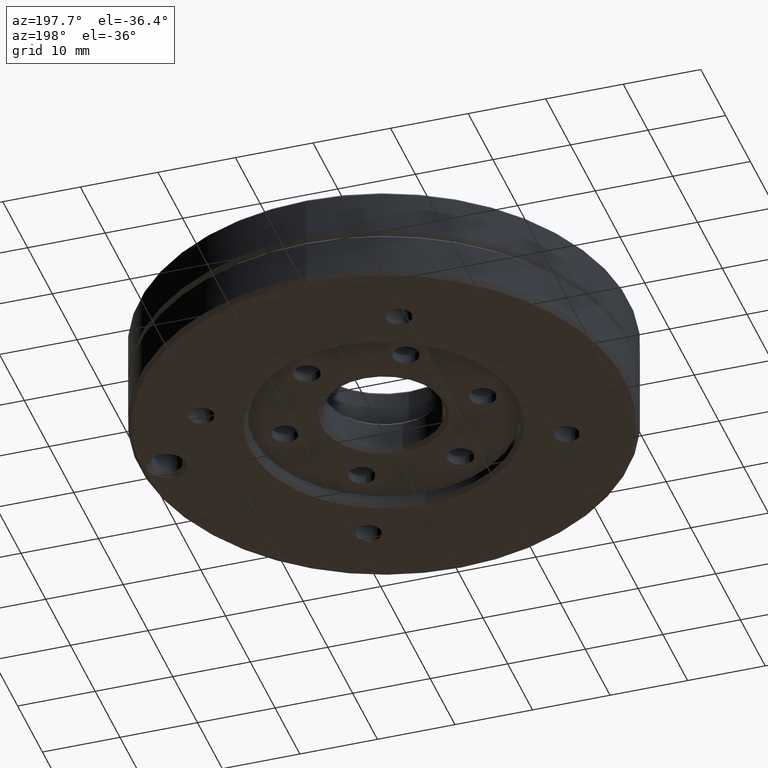
[diagram: clean part render]
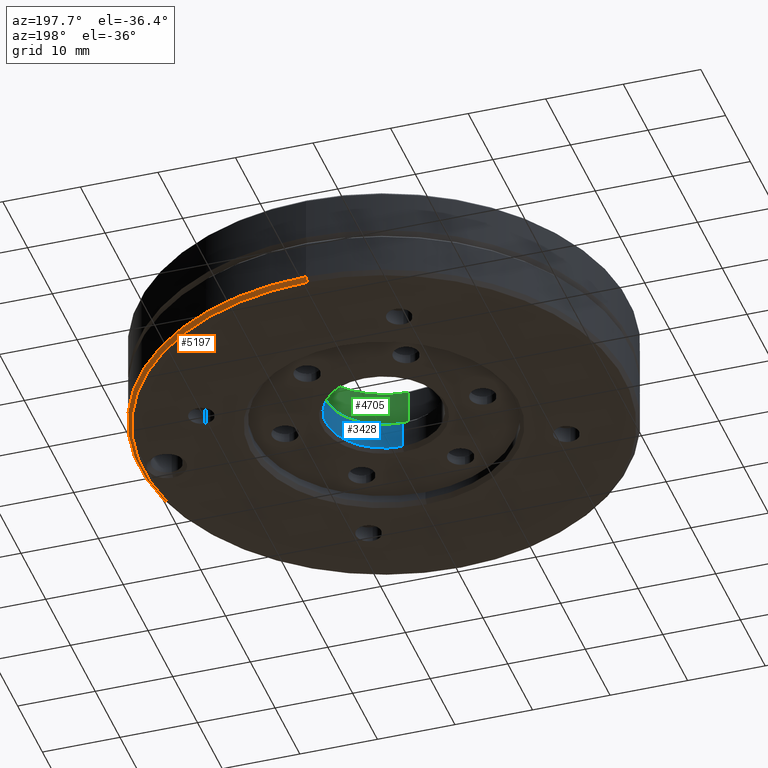
[diagram: same view with three faces highlighted in distinct colors, each labeled with its STEP entity id]
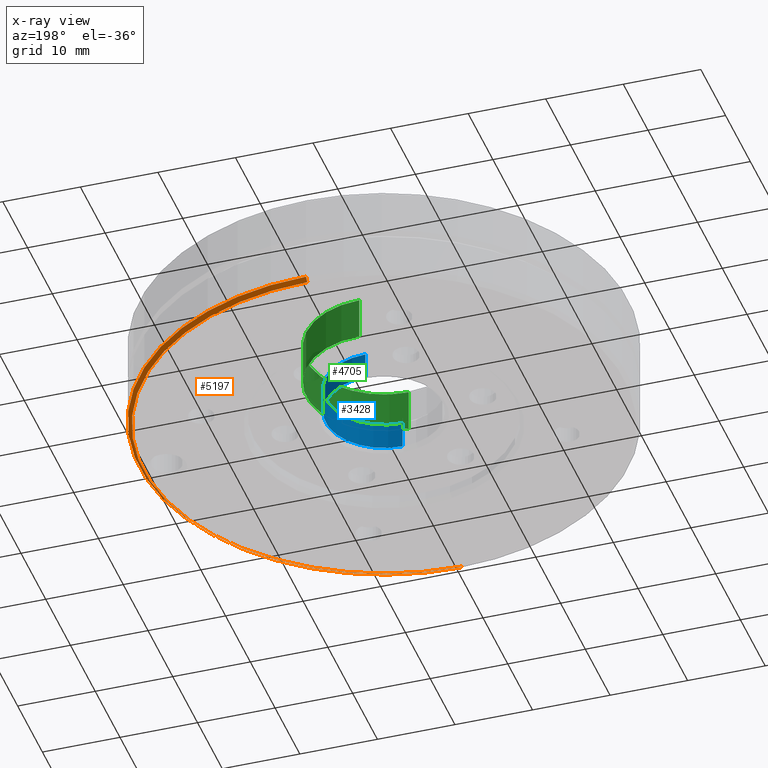
[diagram: x-ray of the same camera — body ghosted, the three highlighted faces saturated]
A machine part, auxiliary view with three faces highlighted in distinct colors.
The next image is the same camera in x-ray (body ghosted, the three faces saturated) — at least one of them is partly hidden behind the body in this view.
Their STEP definitions:

[orange] entity #5197 — the highlighted conical surface has half-angle 45 deg.
#318 = DIRECTION ( 'NONE',  ( -9.367506770274759888E-15, -1.000000000000000000, -1.652117596168385192E-15 ) ) ;
#700 = CARTESIAN_POINT ( 'NONE',  ( 2.952636095120133601E-13, 31.50000000000005684, -5.499999999999954703 ) ) ;
#966 = AXIS2_PLACEMENT_3D ( 'NONE', #3487, #4506, #1531 ) ;
#1105 = DIRECTION ( 'NONE',  ( -9.367506770274758310E-15, -1.000000000000000000, -1.650785243268248973E-15 ) ) ;
#1139 = CARTESIAN_POINT ( 'NONE',  ( -3.252606517456513302E-15, 7.806255641895631925E-15, -6.000000000000000000 ) ) ;
#1309 = CARTESIAN_POINT ( 'NONE',  ( 2.931000589752157613E-13, 31.00000000000001421, -5.999999999999949374 ) ) ;
#1531 = DIRECTION ( 'NONE',  ( -9.367506770274759888E-15, -1.000000000000000000, -1.652117596168385192E-15 ) ) ;
#1554 = CIRCLE ( 'NONE', #6189, 31.50000000000004974 ) ;
#1612 = ORIENTED_EDGE ( 'NONE', *, *, #5988, .T. ) ;
#1704 = EDGE_CURVE ( 'NONE', #4593, #3557, #6424, .T. ) ;
#1758 = DIRECTION ( 'NONE',  ( -7.214805701730610322E-15, -0.7071067811865492381, 0.7071067811865457964 ) ) ;
#1989 = EDGE_CURVE ( 'NONE', #2103, #3383, #1554, .T. ) ;
#2103 = VERTEX_POINT ( 'NONE', #4272 ) ;
#2261 = CARTESIAN_POINT ( 'NONE',  ( -2.987469544326115677E-13, -31.50000000000004263, -5.500000000000058620 ) ) ;
#2763 = DIRECTION ( 'NONE',  ( 6.119445024037303122E-15, 0.7071067811865469066, 0.7071067811865482389 ) ) ;
#2770 = VECTOR ( 'NONE', #1758, 1000.000000000000114 ) ;
#2835 = LINE ( 'NONE', #2261, #2770 ) ;
#3014 = CONICAL_SURFACE ( 'NONE', #966, 31.50000000000004974, 0.7853981633974482790 ) ;
#3027 = EDGE_CURVE ( 'NONE', #3557, #2103, #2835, .T. ) ;
#3383 = VERTEX_POINT ( 'NONE', #6171 ) ;
#3487 = CARTESIAN_POINT ( 'NONE',  ( -3.670491168956210802E-15, 6.978862529460717631E-15, -5.500000000000006217 ) ) ;
#3557 = VERTEX_POINT ( 'NONE', #3907 ) ;
#3907 = CARTESIAN_POINT ( 'NONE',  ( -2.936453163959745763E-13, -31.00000000000004974, -6.000000000000051514 ) ) ;
#3920 = ORIENTED_EDGE ( 'NONE', *, *, #3027, .F. ) ;
#4007 = CARTESIAN_POINT ( 'NONE',  ( -3.670491168956210802E-15, 6.978862529460717631E-15, -5.500000000000006217 ) ) ;
#4024 = FACE_OUTER_BOUND ( 'NONE', #4502, .T. ) ;
#4184 = DIRECTION ( 'NONE',  ( 8.357693029993984519E-16, 1.654786224869864480E-15, -1.000000000000000000 ) ) ;
#4272 = CARTESIAN_POINT ( 'NONE',  ( -2.969787402727955352E-13, -31.49999999999999289, -5.500000000000058620 ) ) ;
#4502 = EDGE_LOOP ( 'NONE', ( #6511, #1612, #6510, #3920 ) ) ;
#4506 = DIRECTION ( 'NONE',  ( -8.357693029993984519E-16, -1.654786224869864480E-15, 1.000000000000000000 ) ) ;
#4593 = VERTEX_POINT ( 'NONE', #1309 ) ;
#4801 = AXIS2_PLACEMENT_3D ( 'NONE', #1139, #4184, #1105 ) ;
#5197 = ADVANCED_FACE ( 'NONE', ( #4024 ), #3014, .T. ) ;
#5322 = LINE ( 'NONE', #700, #6198 ) ;
#5988 = EDGE_CURVE ( 'NONE', #4593, #3383, #5322, .T. ) ;
#6070 = DIRECTION ( 'NONE',  ( -8.357693029993984519E-16, -1.654786224869864480E-15, 1.000000000000000000 ) ) ;
#6171 = CARTESIAN_POINT ( 'NONE',  ( 2.893165488372001443E-13, 31.50000000000000711, -5.499999999999954703 ) ) ;
#6189 = AXIS2_PLACEMENT_3D ( 'NONE', #4007, #6070, #318 ) ;
#6198 = VECTOR ( 'NONE', #2763, 1000.000000000000000 ) ;
#6424 = CIRCLE ( 'NONE', #4801, 31.00000000000005684 ) ;
#6510 = ORIENTED_EDGE ( 'NONE', *, *, #1989, .F. ) ;
#6511 = ORIENTED_EDGE ( 'NONE', *, *, #1704, .F. ) ;

[blue] entity #3428 — the highlighted cylindrical surface (partial cylindrical patch) has radius 7.5 mm, axis along (0, 0, -1).
#33 = EDGE_CURVE ( 'NONE', #307, #4219, #2154, .T. ) ;
#277 = DIRECTION ( 'NONE',  ( 9.367506770274759888E-15, 1.000000000000000000, 1.654786224869864283E-15 ) ) ;
#307 = VERTEX_POINT ( 'NONE', #672 ) ;
#672 = CARTESIAN_POINT ( 'NONE',  ( 6.386955937335646328E-14, 7.500000000000004441, -3.999999999999993339 ) ) ;
#926 = DIRECTION ( 'NONE',  ( -9.367506770274759888E-15, -1.000000000000000000, -1.647987302177964373E-15 ) ) ;
#1081 = AXIS2_PLACEMENT_3D ( 'NONE', #5794, #4312, #277 ) ;
#1237 = VECTOR ( 'NONE', #6363, 1000.000000000000000 ) ;
#1911 = CARTESIAN_POINT ( 'NONE',  ( -7.849337683953182650E-15, -1.295068594888583273E-15, -0.5000000000000204281 ) ) ;
#2154 = CIRCLE ( 'NONE', #2263, 7.500000000000010658 ) ;
#2158 = CARTESIAN_POINT ( 'NONE',  ( 6.386955937335641279E-14, 7.499999999999999112, -0.5000000000000079936 ) ) ;
#2160 = EDGE_CURVE ( 'NONE', #2535, #4219, #2245, .T. ) ;
#2245 = LINE ( 'NONE', #4305, #1237 ) ;
#2255 = FACE_OUTER_BOUND ( 'NONE', #4194, .T. ) ;
#2263 = AXIS2_PLACEMENT_3D ( 'NONE', #2850, #6472, #2716 ) ;
#2535 = VERTEX_POINT ( 'NONE', #3690 ) ;
#2716 = DIRECTION ( 'NONE',  ( -9.367506770274759888E-15, -1.000000000000000000, -1.619075244245017654E-15 ) ) ;
#2850 = CARTESIAN_POINT ( 'NONE',  ( -4.924145123455310403E-15, 4.496683192155911642E-15, -4.000000000000005329 ) ) ;
#2927 = DIRECTION ( 'NONE',  ( -8.357693029993984519E-16, -1.654786224869864480E-15, 1.000000000000000000 ) ) ;
#3063 = EDGE_CURVE ( 'NONE', #3345, #307, #5866, .T. ) ;
#3171 = ORIENTED_EDGE ( 'NONE', *, *, #2160, .F. ) ;
#3215 = ORIENTED_EDGE ( 'NONE', *, *, #33, .T. ) ;
#3275 = CARTESIAN_POINT ( 'NONE',  ( -7.572455708140442300E-14, -7.499999999999995559, -4.000000000000017764 ) ) ;
#3311 = CARTESIAN_POINT ( 'NONE',  ( 6.198907844160789237E-14, 7.500000000000008882, 1.241089668652399997E-14 ) ) ;
#3345 = VERTEX_POINT ( 'NONE', #2158 ) ;
#3428 = ADVANCED_FACE ( 'NONE', ( #2255 ), #5420, .F. ) ;
#3690 = CARTESIAN_POINT ( 'NONE',  ( -7.572455708140446087E-14, -7.500000000000000888, -0.5000000000000327516 ) ) ;
#3948 = CIRCLE ( 'NONE', #4158, 7.500000000000010658 ) ;
#4064 = VECTOR ( 'NONE', #4931, 1000.000000000000000 ) ;
#4158 = AXIS2_PLACEMENT_3D ( 'NONE', #1911, #2927, #926 ) ;
#4194 = EDGE_LOOP ( 'NONE', ( #3171, #6646, #5244, #3215 ) ) ;
#4219 = VERTEX_POINT ( 'NONE', #3275 ) ;
#4305 = CARTESIAN_POINT ( 'NONE',  ( -7.760503801315319586E-14, -7.500000000000012434, -1.241089668652399839E-14 ) ) ;
#4312 = DIRECTION ( 'NONE',  ( 8.357693029993984519E-16, 1.654786224869864480E-15, -1.000000000000000000 ) ) ;
#4931 = DIRECTION ( 'NONE',  ( 8.357693029993984519E-16, 1.654786224869864480E-15, -1.000000000000000000 ) ) ;
#5244 = ORIENTED_EDGE ( 'NONE', *, *, #3063, .T. ) ;
#5420 = CYLINDRICAL_SURFACE ( 'NONE', #1081, 7.500000000000010658 ) ;
#5794 = CARTESIAN_POINT ( 'NONE',  ( -8.267222335452903816E-15, -2.122461707323547068E-15, 0.0000000000000000000 ) ) ;
#5866 = LINE ( 'NONE', #3311, #4064 ) ;
#6363 = DIRECTION ( 'NONE',  ( 8.357693029993984519E-16, 1.654786224869864480E-15, -1.000000000000000000 ) ) ;
#6367 = EDGE_CURVE ( 'NONE', #2535, #3345, #3948, .T. ) ;
#6472 = DIRECTION ( 'NONE',  ( 8.357693029993984519E-16, 1.654786224869864480E-15, -1.000000000000000000 ) ) ;
#6646 = ORIENTED_EDGE ( 'NONE', *, *, #6367, .T. ) ;

[green] entity #4705 — the highlighted cylindrical surface (partial cylindrical patch) has radius 10 mm, axis along (-0, -0, -1).
#337 = DIRECTION ( 'NONE',  ( -5.551115123125782702E-17, -8.122900918572822600E-42, -1.000000000000000000 ) ) ;
#401 = CIRCLE ( 'NONE', #6017, 10.00000000000000000 ) ;
#1151 = CARTESIAN_POINT ( 'NONE',  ( 1.405058040648938630E-15, -10.00000000000000000, 0.4999999999999588107 ) ) ;
#1263 = VERTEX_POINT ( 'NONE', #1151 ) ;
#1288 = CARTESIAN_POINT ( 'NONE',  ( 1.804112415015856205E-16, 10.00000000000000000, 0.4999999999999588107 ) ) ;
#1474 = CARTESIAN_POINT ( 'NONE',  ( 3.330669073875445955E-16, 4.873740551143660169E-41, 5.999999999999957367 ) ) ;
#1940 = EDGE_CURVE ( 'NONE', #5562, #3101, #6584, .T. ) ;
#2010 = LINE ( 'NONE', #6634, #5670 ) ;
#2165 = AXIS2_PLACEMENT_3D ( 'NONE', #1474, #6064, #6509 ) ;
#2412 = CARTESIAN_POINT ( 'NONE',  ( 2.775557561562662705E-17, 4.061450459286078025E-42, 0.4999999999999588107 ) ) ;
#2415 = VECTOR ( 'NONE', #2420, 1000.000000000000000 ) ;
#2420 = DIRECTION ( 'NONE',  ( -5.551115123125782702E-17, -8.122900918572822600E-42, -1.000000000000000000 ) ) ;
#2548 = EDGE_LOOP ( 'NONE', ( #4821, #4675, #4464, #5811 ) ) ;
#3030 = CYLINDRICAL_SURFACE ( 'NONE', #3969, 10.00000000000000000 ) ;
#3038 = CARTESIAN_POINT ( 'NONE',  ( 3.608224830031758756E-16, 10.00000000000000000, 6.500000000000000000 ) ) ;
#3046 = CARTESIAN_POINT ( 'NONE',  ( 1.804112415015856698E-16, 10.00000000000000000, 5.999999999999957367 ) ) ;
#3101 = VERTEX_POINT ( 'NONE', #1288 ) ;
#3531 = FACE_OUTER_BOUND ( 'NONE', #2548, .T. ) ;
#3607 = EDGE_CURVE ( 'NONE', #3630, #5562, #5391, .T. ) ;
#3630 = VERTEX_POINT ( 'NONE', #5594 ) ;
#3967 = DIRECTION ( 'NONE',  ( -5.551115123125782702E-17, -8.122900918572823875E-42, -1.000000000000000000 ) ) ;
#3969 = AXIS2_PLACEMENT_3D ( 'NONE', #4029, #5649, #6062 ) ;
#4029 = CARTESIAN_POINT ( 'NONE',  ( 3.608224830031758756E-16, 5.279885597072334881E-41, 6.500000000000000000 ) ) ;
#4464 = ORIENTED_EDGE ( 'NONE', *, *, #1940, .T. ) ;
#4657 = EDGE_CURVE ( 'NONE', #3101, #1263, #401, .T. ) ;
#4675 = ORIENTED_EDGE ( 'NONE', *, *, #3607, .T. ) ;
#4705 = ADVANCED_FACE ( 'NONE', ( #3531 ), #3030, .F. ) ;
#4821 = ORIENTED_EDGE ( 'NONE', *, *, #6391, .F. ) ;
#5391 = CIRCLE ( 'NONE', #2165, 10.00000000000000000 ) ;
#5562 = VERTEX_POINT ( 'NONE', #3046 ) ;
#5594 = CARTESIAN_POINT ( 'NONE',  ( 1.405058040648938630E-15, -10.00000000000000000, 5.999999999999957367 ) ) ;
#5649 = DIRECTION ( 'NONE',  ( -5.551115123125782702E-17, -8.122900918572822600E-42, -1.000000000000000000 ) ) ;
#5670 = VECTOR ( 'NONE', #337, 1000.000000000000000 ) ;
#5811 = ORIENTED_EDGE ( 'NONE', *, *, #4657, .T. ) ;
#6017 = AXIS2_PLACEMENT_3D ( 'NONE', #2412, #3967, #6030 ) ;
#6030 = DIRECTION ( 'NONE',  ( 0.0000000000000000000, -1.000000000000000000, 0.0000000000000000000 ) ) ;
#6062 = DIRECTION ( 'NONE',  ( 0.0000000000000000000, 1.000000000000000000, 0.0000000000000000000 ) ) ;
#6064 = DIRECTION ( 'NONE',  ( 5.551115123125782702E-17, 8.122900918572823875E-42, 1.000000000000000000 ) ) ;
#6391 = EDGE_CURVE ( 'NONE', #3630, #1263, #2010, .T. ) ;
#6509 = DIRECTION ( 'NONE',  ( 0.0000000000000000000, -1.000000000000000000, 0.0000000000000000000 ) ) ;
#6584 = LINE ( 'NONE', #3038, #2415 ) ;
#6634 = CARTESIAN_POINT ( 'NONE',  ( 1.585469282150528738E-15, -10.00000000000000000, 6.500000000000000000 ) ) ;